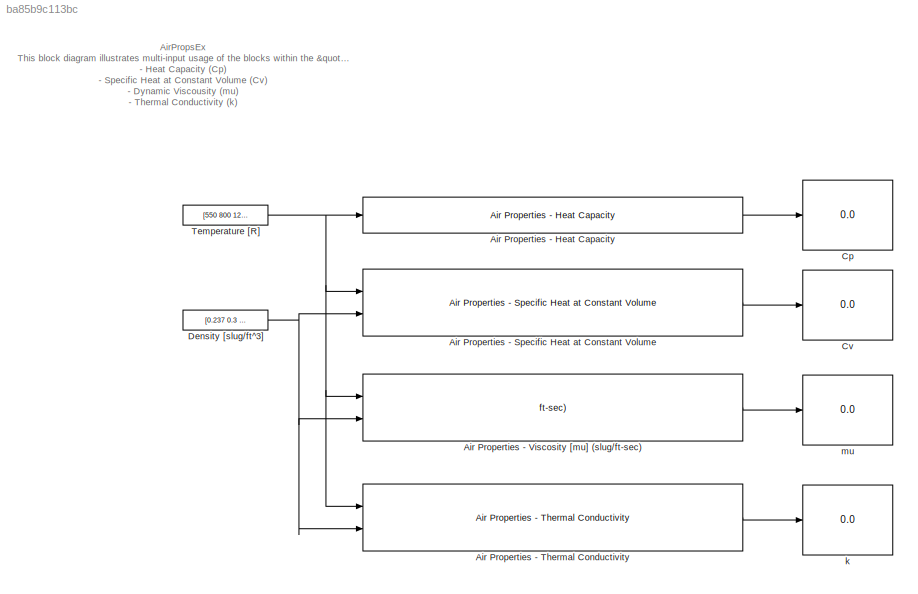
MODEL slx_ba85b9c113bc
KIND model
CONFIG AbsTol = auto
CONFIG FixedStep = auto
CONFIG MaxStep = auto
CONFIG MinStep = auto
CONFIG RelTol = 1e-3
CONFIG SampleTimeConstraint = Unconstrained
CONFIG Solver = ode45
CONFIG SolverMode = Auto
CONFIG SolverName = ode45
CONFIG StartTime = 0.0
CONFIG StopTime = 10.0
BLOCK [Reference] Air Properties - Heat Capacity  REF=lib_AirProps_HeatCapacity/Air Properties - Heat Capacity
  BN_M = double(gcb)
  Ports = [1, 1]
  SourceBlock = lib_AirProps_HeatCapacity/Air Properties - Heat Capacity
  SourceType = TSAT: Air Properties - Heat Capacity Block
BLOCK [Reference] Air Properties - Specific Heat at Constant Volume  REF=lib_AirProps_SpecificHeatConstVol/Air Properties - Specific Heat at Constant Volume
  BN_M = double(gcb)
  Ports = [2, 1]
  SourceBlock = lib_AirProps_SpecificHeatConstVol/Air Properties - Specific Heat at Constant Volume
  SourceType = TSAT: Air Properties - Specific Heat at Constant Volume Block
BLOCK [Reference] Air Properties - Thermal Conductivity  REF=lib_AirProps_ThermCond/Air Properties - Thermal Conductivity
  BN_M = double(gcb)
  Ports = [2, 1]
  SourceBlock = lib_AirProps_ThermCond/Air Properties - Thermal Conductivity
  SourceType = TSAT: Air Properties - Thermal Conductivity Block
BLOCK [Reference] Air Properties - Viscosity [mu] (slug//ft-sec)  REF=lib_AirProps_Viscosity/Air Properties - Viscosity [mu] (slug//ft-sec)
  BN_M = double(gcb)
  Ports = [2, 1]
  SourceBlock = lib_AirProps_Viscosity/Air Properties - Viscosity [mu] (slug//ft-sec)
  SourceType = TSAT: Air Properties - Viscosity Block
BLOCK [Display] Cp
  Decimation = 1
  Ports = [1]
BLOCK [Display] Cv
  Decimation = 1
  Ports = [1]
BLOCK [Constant] Density [slug//ft^3]
  Value = [0.237 0.3 0.4]
BLOCK [Constant] Temperature [R]
  Value = [550 800 1200]
BLOCK [Display] k
  Decimation = 1
  Ports = [1]
BLOCK [Display] mu
  Decimation = 1
  Ports = [1]
ANNOTATION (root): AirPropsEx This block diagram illustrates multi-input usage of the blocks within the "Air Properties" Library of TSAT. Estimated properties include: - Heat Capacity (Cp) - Specific Heat at Constant Volume (Cv) - Dynamic Viscousity (mu) - Thermal Conductivity (k)
LINE Air Properties - Heat Capacity:1 -> Cp:1
LINE Air Properties - Specific Heat at Constant Volume:1 -> Cv:1
LINE Air Properties - Thermal Conductivity:1 -> k:1
LINE Air Properties - Viscosity [mu] (slug//ft-sec):1 -> mu:1
NET Density [slug//ft^3]:1 -> Air Properties - Specific Heat at Constant Volume:2, Air Properties - Thermal Conductivity:2, Air Properties - Viscosity [mu] (slug//ft-sec):2
NET Temperature [R]:1 -> Air Properties - Heat Capacity:1, Air Properties - Specific Heat at Constant Volume:1, Air Properties - Thermal Conductivity:1, Air Properties - Viscosity [mu] (slug//ft-sec):1
note: NET lines group one-source signal fan-out (src -> all destinations, sorted); 1:1 wires keep LINE
